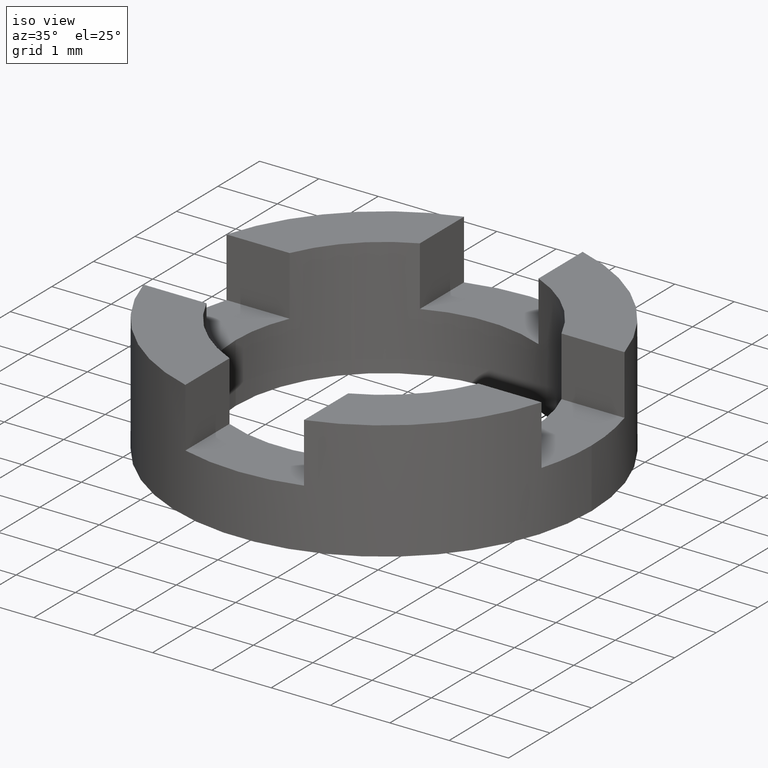
[diagram: clean part render]
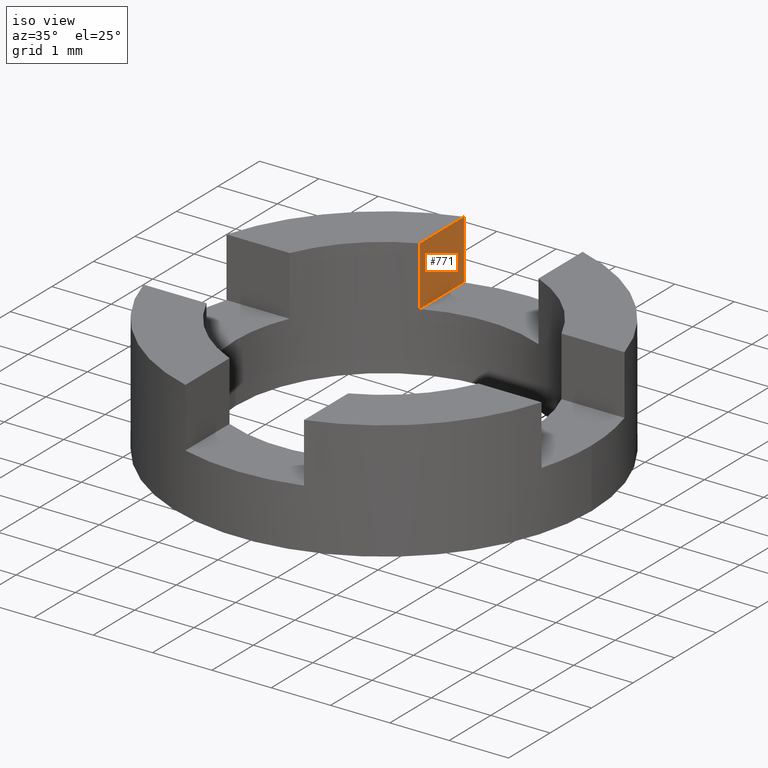
[diagram: same view with one face highlighted and labeled with its STEP entity id]
A machine part, iso view. The second image highlights one B-rep face of the part: STEP entity #771.
In plain terms, the highlighted planar face has unit normal (-1, 0, 0).
Its self-contained STEP definition (entity closure, byte-faithful):
#22 = VECTOR ( 'NONE', #564, 1000.000000000000000 ) ;
#38 = FACE_OUTER_BOUND ( 'NONE', #683, .T. ) ;
#70 = CARTESIAN_POINT ( 'NONE',  ( -0.9999999999999997780, 1.805037895305898088, 1.000000000000000000 ) ) ;
#88 = CARTESIAN_POINT ( 'NONE',  ( -0.9999999999999997780, 3.354101966249684708, 1.000000000000000000 ) ) ;
#96 = CARTESIAN_POINT ( 'NONE',  ( -0.9999999999999997780, 2.291287847477920359, 2.000000000000000000 ) ) ;
#121 = ORIENTED_EDGE ( 'NONE', *, *, #330, .T. ) ;
#152 = ORIENTED_EDGE ( 'NONE', *, *, #305, .F. ) ;
#166 = VECTOR ( 'NONE', #244, 1000.000000000000000 ) ;
#186 = CARTESIAN_POINT ( 'NONE',  ( -0.9999999999999997780, 3.354101966249684708, 2.000000000000000000 ) ) ;
#205 = CARTESIAN_POINT ( 'NONE',  ( -0.9999999999999997780, 2.291287847477920359, 1.000000000000000000 ) ) ;
#212 = EDGE_CURVE ( 'NONE', #281, #317, #249, .T. ) ;
#221 = PLANE ( 'NONE',  #628 ) ;
#244 = DIRECTION ( 'NONE',  ( -0.000000000000000000, -1.000000000000000000, -0.000000000000000000 ) ) ;
#249 = LINE ( 'NONE', #70, #259 ) ;
#259 = VECTOR ( 'NONE', #379, 1000.000000000000000 ) ;
#270 = LINE ( 'NONE', #279, #22 ) ;
#279 = CARTESIAN_POINT ( 'NONE',  ( -0.9999999999999997780, 3.354101966249684708, 2.000000000000000000 ) ) ;
#281 = VERTEX_POINT ( 'NONE', #88 ) ;
#305 = EDGE_CURVE ( 'NONE', #735, #281, #270, .T. ) ;
#317 = VERTEX_POINT ( 'NONE', #205 ) ;
#330 = EDGE_CURVE ( 'NONE', #397, #317, #459, .T. ) ;
#332 = VECTOR ( 'NONE', #384, 1000.000000000000000 ) ;
#349 = CARTESIAN_POINT ( 'NONE',  ( -0.9999999999999997780, 2.291287847477920359, 2.000000000000000000 ) ) ;
#379 = DIRECTION ( 'NONE',  ( -0.000000000000000000, -1.000000000000000000, -0.000000000000000000 ) ) ;
#384 = DIRECTION ( 'NONE',  ( -0.000000000000000000, -0.000000000000000000, -1.000000000000000000 ) ) ;
#397 = VERTEX_POINT ( 'NONE', #349 ) ;
#412 = LINE ( 'NONE', #647, #166 ) ;
#445 = ORIENTED_EDGE ( 'NONE', *, *, #636, .T. ) ;
#459 = LINE ( 'NONE', #96, #332 ) ;
#564 = DIRECTION ( 'NONE',  ( -0.000000000000000000, -0.000000000000000000, -1.000000000000000000 ) ) ;
#579 = DIRECTION ( 'NONE',  ( -1.000000000000000000, 0.000000000000000000, 0.000000000000000000 ) ) ;
#628 = AXIS2_PLACEMENT_3D ( 'NONE', #644, #579, #629 ) ;
#629 = DIRECTION ( 'NONE',  ( 0.000000000000000000, 0.000000000000000000, 1.000000000000000000 ) ) ;
#631 = ORIENTED_EDGE ( 'NONE', *, *, #212, .F. ) ;
#636 = EDGE_CURVE ( 'NONE', #735, #397, #412, .T. ) ;
#644 = CARTESIAN_POINT ( 'NONE',  ( -0.9999999999999997780, 1.805037895305898088, 1.000000000000000000 ) ) ;
#647 = CARTESIAN_POINT ( 'NONE',  ( -0.9999999999999997780, 1.805037895305898088, 2.000000000000000000 ) ) ;
#683 = EDGE_LOOP ( 'NONE', ( #445, #121, #631, #152 ) ) ;
#735 = VERTEX_POINT ( 'NONE', #186 ) ;
#771 = ADVANCED_FACE ( 'NONE', ( #38 ), #221, .F. ) ;